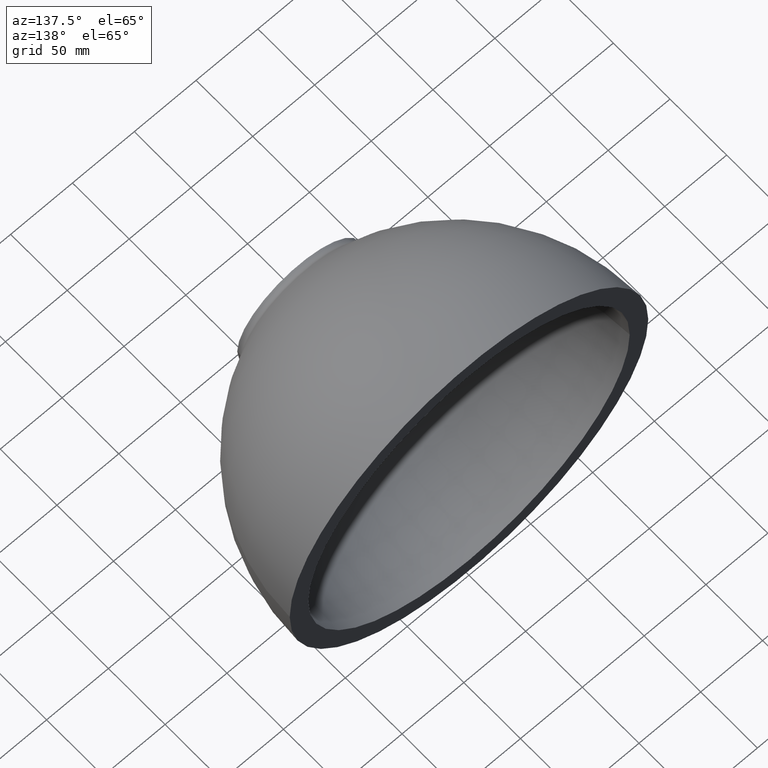
[diagram: clean part render]
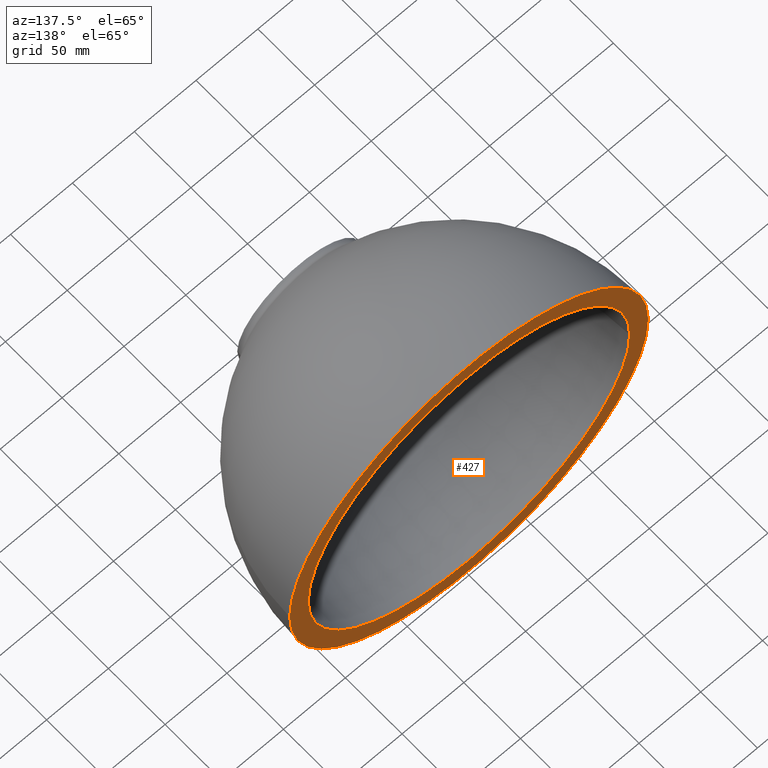
[diagram: same view with one face highlighted and labeled with its STEP entity id]
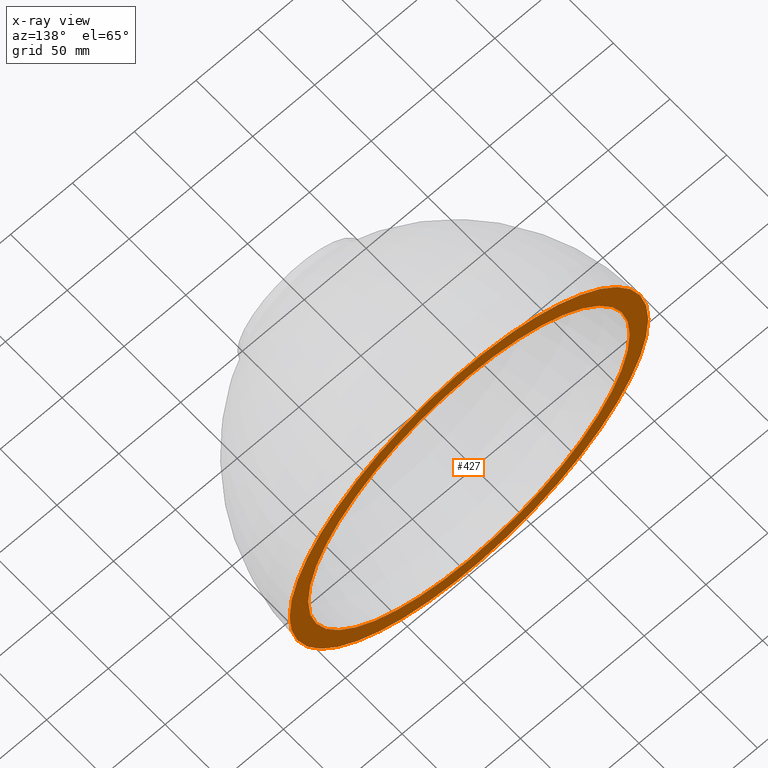
[diagram: x-ray of the same camera — body ghosted, the highlighted face saturated]
A machine part, auxiliary view. The second image highlights one B-rep face of the part: STEP entity #427.
The next image is the same camera in x-ray: the body ghosted, the highlighted face saturated — about 0% of this face is hidden behind the body in this view.
In plain terms, the highlighted planar face has unit normal (-0, 1, 0).
Its self-contained STEP definition (entity closure, byte-faithful):
#10 = AXIS2_PLACEMENT_3D ( 'NONE', #72, #347, #66 ) ;
#11 = CARTESIAN_POINT ( 'NONE',  ( -2.694001388746047700E-015, 150.0000000000000300, 0.0000000000000000000 ) ) ;
#40 = PLANE ( 'NONE',  #228 ) ;
#41 = ORIENTED_EDGE ( 'NONE', *, *, #374, .T. ) ;
#43 = EDGE_CURVE ( 'NONE', #109, #384, #349, .T. ) ;
#51 = DIRECTION ( 'NONE',  ( -1.104785946437366900E-016, 1.000000000000000000, -0.0000000000000000000 ) ) ;
#66 = DIRECTION ( 'NONE',  ( -1.000000000000000000, -1.914177628664062900E-016, 0.0000000000000000000 ) ) ;
#72 = CARTESIAN_POINT ( 'NONE',  ( -2.694001388746047700E-015, 150.0000000000000300, 0.0000000000000000000 ) ) ;
#95 = CARTESIAN_POINT ( 'NONE',  ( 129.9999999999999400, 150.0000000000000600, 1.592040838891558800E-014 ) ) ;
#108 = DIRECTION ( 'NONE',  ( -1.104785946437366900E-016, 1.000000000000000000, 0.0000000000000000000 ) ) ;
#109 = VERTEX_POINT ( 'NONE', #95 ) ;
#112 = ORIENTED_EDGE ( 'NONE', *, *, #198, .F. ) ;
#119 = EDGE_CURVE ( 'NONE', #302, #375, #149, .T. ) ;
#120 = CARTESIAN_POINT ( 'NONE',  ( -2.694001388746050500E-015, 150.0000000000000300, 0.0000000000000000000 ) ) ;
#124 = DIRECTION ( 'NONE',  ( -1.104785946437366900E-016, 1.000000000000000000, -0.0000000000000000000 ) ) ;
#149 = CIRCLE ( 'NONE', #284, 145.0000000000000000 ) ;
#167 = ORIENTED_EDGE ( 'NONE', *, *, #43, .F. ) ;
#180 = FACE_OUTER_BOUND ( 'NONE', #244, .T. ) ;
#198 = EDGE_CURVE ( 'NONE', #384, #109, #406, .T. ) ;
#209 = CARTESIAN_POINT ( 'NONE',  ( -129.9999999999999400, 150.0000000000000000, 0.0000000000000000000 ) ) ;
#219 = DIRECTION ( 'NONE',  ( -1.104785946437366900E-016, 1.000000000000000000, -0.0000000000000000000 ) ) ;
#228 = AXIS2_PLACEMENT_3D ( 'NONE', #308, #108, #372 ) ;
#244 = EDGE_LOOP ( 'NONE', ( #41, #351 ) ) ;
#258 = DIRECTION ( 'NONE',  ( -1.000000000000000000, -2.135044278125302100E-016, 0.0000000000000000000 ) ) ;
#279 = DIRECTION ( 'NONE',  ( -1.000000000000000000, -2.135044278125302100E-016, 0.0000000000000000000 ) ) ;
#284 = AXIS2_PLACEMENT_3D ( 'NONE', #11, #51, #395 ) ;
#296 = AXIS2_PLACEMENT_3D ( 'NONE', #120, #219, #258 ) ;
#302 = VERTEX_POINT ( 'NONE', #370 ) ;
#308 = CARTESIAN_POINT ( 'NONE',  ( -145.0000000000000000, 150.0000000000000300, 0.0000000000000000000 ) ) ;
#318 = EDGE_LOOP ( 'NONE', ( #112, #167 ) ) ;
#344 = CIRCLE ( 'NONE', #10, 145.0000000000000000 ) ;
#347 = DIRECTION ( 'NONE',  ( -1.104785946437366900E-016, 1.000000000000000000, -0.0000000000000000000 ) ) ;
#349 = CIRCLE ( 'NONE', #296, 129.9999999999999400 ) ;
#351 = ORIENTED_EDGE ( 'NONE', *, *, #119, .T. ) ;
#368 = FACE_BOUND ( 'NONE', #318, .T. ) ;
#370 = CARTESIAN_POINT ( 'NONE',  ( 145.0000000000000300, 150.0000000000000600, 1.775737858763661900E-014 ) ) ;
#372 = DIRECTION ( 'NONE',  ( -1.000000000000000000, -1.104785946437366900E-016, 0.0000000000000000000 ) ) ;
#374 = EDGE_CURVE ( 'NONE', #375, #302, #344, .T. ) ;
#375 = VERTEX_POINT ( 'NONE', #404 ) ;
#381 = CARTESIAN_POINT ( 'NONE',  ( -2.694001388746050500E-015, 150.0000000000000300, 0.0000000000000000000 ) ) ;
#384 = VERTEX_POINT ( 'NONE', #209 ) ;
#395 = DIRECTION ( 'NONE',  ( -1.000000000000000000, -1.914177628664062900E-016, 0.0000000000000000000 ) ) ;
#404 = CARTESIAN_POINT ( 'NONE',  ( -145.0000000000000300, 150.0000000000000000, 0.0000000000000000000 ) ) ;
#406 = CIRCLE ( 'NONE', #418, 129.9999999999999400 ) ;
#418 = AXIS2_PLACEMENT_3D ( 'NONE', #381, #124, #279 ) ;
#427 = ADVANCED_FACE ( 'NONE', ( #180, #368 ), #40, .T. ) ;